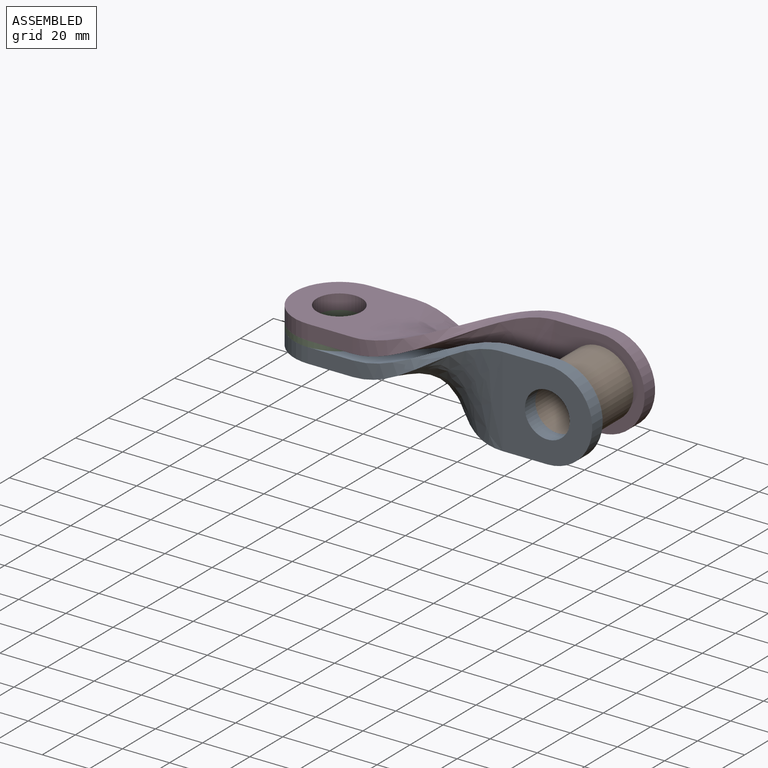
[diagram: assembled view]
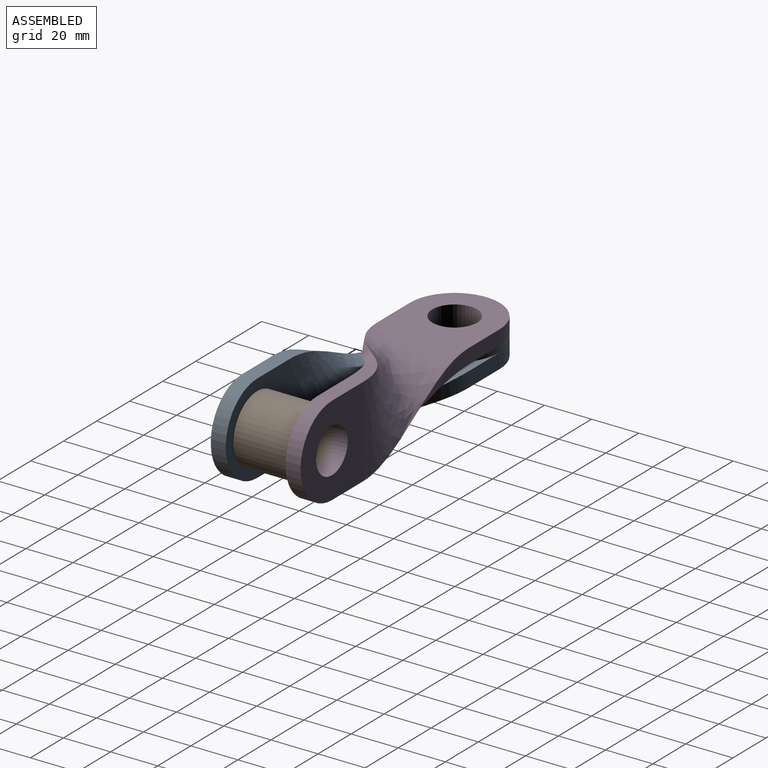
[diagram: assembled view, second angle]
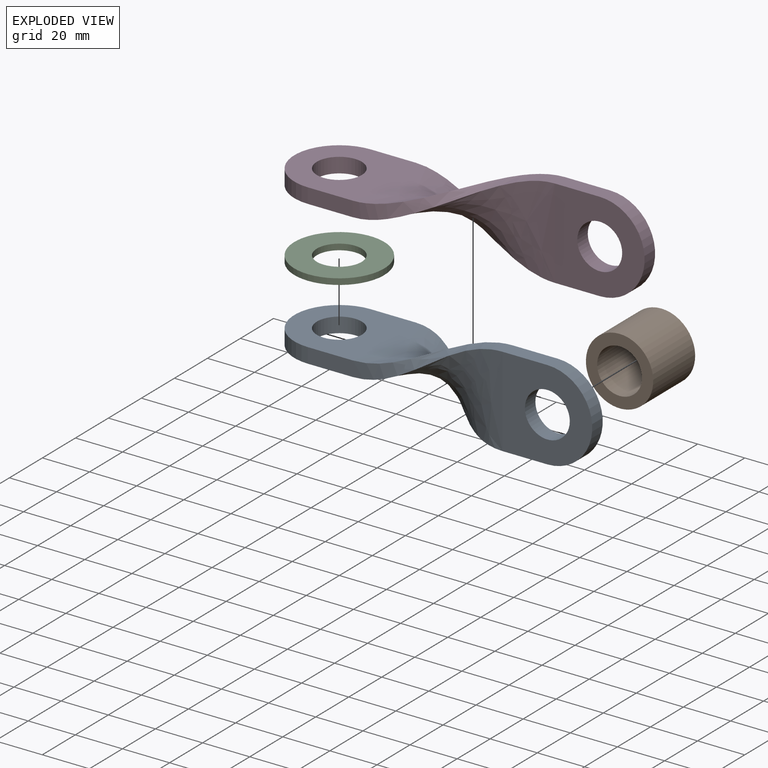
[diagram: exploded view]
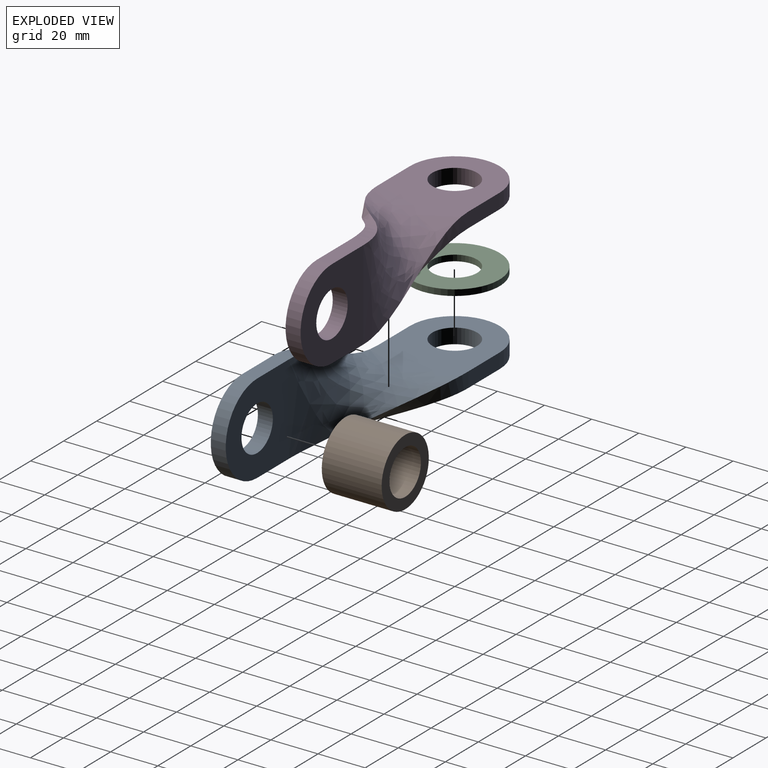
[diagram: exploded view, second angle]
ASSEMBLY  parts=4 mates=3
PART A: 16 faces, bbox 139.7x38.1x38.1 mm
  f0: plane 38.1x38.1mm, normal (0,0,1), area 1010.8mm2, adj f2,f3,f4,f5,f8
  f1: plane 38.1x38.1mm, normal (0,0,-1), area 1010.8mm2, adj f2,f3,f4,f5,f7
  f2: cylinder r=19.05mm len=38.1mm, axis (0,0,-1), area 380mm2, adj f0,f1,f3,f4
  f3: plane 19.05x6.35mm, normal (0,-1,0), area 121mm2, adj f0,f1,f2,f6
  f4: plane 19.05x6.35mm, normal (0,1,0), area 121mm2, adj f0,f1,f2,f9
  f5: cylinder r=9.53mm len=19.05mm, axis (0,0,-1), area 380mm2, adj f0,f1
  f6: bspline ~63.5x38.1mm, area 367.5mm2, adj f3,f7,f8,f11
  f7: bspline ~63.5x38.1mm, area 2156.9mm2, adj f1,f6,f9,f13
  f8: bspline ~63.5x38.1mm, area 2173.1mm2, adj f0,f6,f9,f14
  f9: bspline ~63.5x26.67mm, area 358.3mm2, adj f4,f7,f8,f12
  f10: cylinder r=19.05mm len=38.1mm, axis (0,1,0), area 380mm2, adj f11,f12,f13,f14
  f11: plane 19.05x6.35mm, normal (0,0,1), area 121mm2, adj f6,f10,f13,f14
  f12: plane 19.05x6.35mm, normal (0,0,-1), area 121mm2, adj f9,f10,f13,f14
  f13: plane 38.1x38.1mm, normal (0,-1,0), area 1010.8mm2, adj f7,f10,f11,f12,f15
  f14: plane 38.1x38.1mm, normal (0,1,0), area 1010.8mm2, adj f8,f10,f11,f12,f15
  f15: cylinder r=9.53mm len=19.05mm, axis (0,1,0), area 380mm2, adj f13,f14
PART B: 4 faces, bbox 28.6x28.6x25.4 mm
  f0: plane 28.58x28.58mm, normal (0,0,1), area 356.3mm2, adj f2,f3
  f1: plane 28.58x28.58mm, normal (0,0,-1), area 356.3mm2, adj f2,f3
  f2: cylinder r=14.29mm len=28.58mm, axis (0,0,-1), area 2280.2mm2, adj f0,f1
  f3: cylinder r=9.53mm len=25.4mm, axis (0,0,-1), area 1520.1mm2, adj f0,f1
PART C: 4 faces, bbox 38.1x38.1x2.5 mm
  f0: plane 38.1x38.1mm, normal (0,0,1), area 855.1mm2, adj f2,f3
  f1: plane 38.1x38.1mm, normal (0,0,-1), area 855.1mm2, adj f2,f3
  f2: cylinder r=19.05mm len=38.1mm, axis (0,0,-1), area 304mm2, adj f0,f1
  f3: cylinder r=9.53mm len=19.05mm, axis (0,0,-1), area 152mm2, adj f0,f1
PART D: same geometry as A
PLACE A rot(axis=(1,0,0),180deg) t=(50.8,0,7.62)mm
PLACE B rot(axis=(-1,0,0),90deg) t=(101.6,0,7.62)mm
PLACE C t=(0,0,7.62)mm
PLACE D t=(50.8,0,7.62)mm
MATE fastened A.f2 <-> C.f2  axis (0,0,1) through (0,0,6.35)mm
MATE fastened B.f2 <-> A.f10  axis (0,-1,0) through (101.6,-12.7,7.62)mm
MATE fastened C.f2 <-> D.f2  axis (0,0,1) through (0,0,8.89)mm
